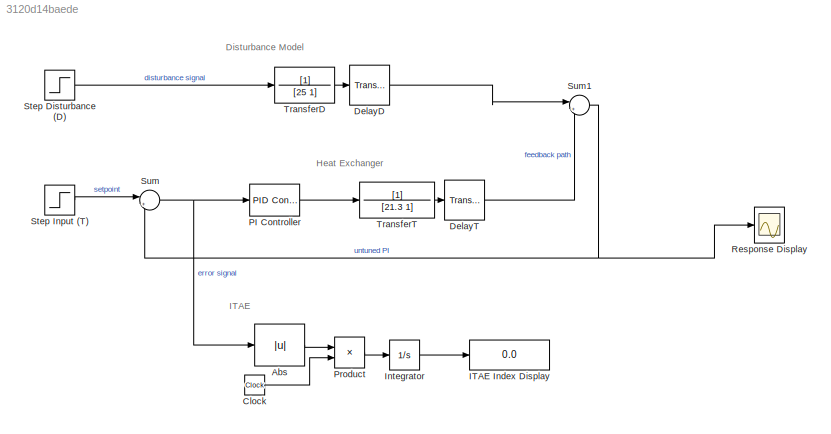
MODEL slx_3120d14baede
KIND model
CONFIG AbsTol = auto
CONFIG EnableMultiTasking = off
CONFIG FixedStep = auto
CONFIG MaxStep = auto
CONFIG MinStep = auto
CONFIG RelTol = 1e-3
CONFIG SampleTimeConstraint = Unconstrained
CONFIG SolverName = VariableStepAuto
CONFIG StartTime = 0.0
CONFIG StopTime = 500
BLOCK [Abs] Abs
  SaturateOnIntegerOverflow = off
BLOCK [Clock] Clock
BLOCK [TransportDelay] DelayD
  DelayTime = 35
BLOCK [TransportDelay] DelayT
  DelayTime = 14.7
BLOCK [Display] ITAE Index Display
  Decimation = 1
BLOCK [Integrator] Integrator
BLOCK [Reference] PI Controller  REF=slpidlib/PID Controller
  LibrarySourceBlock = simulink/Continuous/PID Controller
  SourceBlock = slpidlib/PID Controller
  SourceType = PID 1dof
BLOCK [Product] Product
BLOCK [Scope] Response Display
  ActiveDisplayYMaximum = 1.9617253861298845
  ActiveDisplayYMinimum = -0.21796948734776489
  Floating = off
  GraphicalSettings = {"Style":{"BackgroundColor":[0.12941176470588237,0.12941176470588237,0.12941176470588237],"AxesColor":[0.07058823529411765,0.07058823529411765,0.07058823529411765],"LabelsColor":[0.8509803921568627,0.8509803921568627,0.8509803921568627],"PreserveColors":false,"Visible":[true],"LineStyle":["-"],"LineWidth":[0.75],"BarWidth":[0.9],"LineColor":["auto"],"LineFaceAlpha":[1],"LineEdgeAlpha":[1],"Marker"...<+2006ch>
  MultipleDisplayCache = [{"MaxYLimMag":1.9617253861298845,"MaxYLimReal":1.9617253861298845,"MinYLimMag":0,"MinYLimReal":-0.21796948734776489,"PlotAsMagnitudePhase":false,"ShowGrid":true,"ShowLegend":true,"Title":"%<SignalLabel>","YLabel":""}]
  NumInputPorts = 1
  ScopeFrameLocation = window
  ShowLegend = on
  WasSavedAsWebScope = on
  WindowPosition = [274.000000,27.000000,929.000000,649.000000,]
BLOCK [Step] Step Disturbance (D)
  SampleTime = 0
  Time = 0
BLOCK [Step] Step Input (T)
  SampleTime = 0
  Time = 0
BLOCK [Sum] Sum
  Inputs = |+-
BLOCK [Sum] Sum1
  Inputs = |++
BLOCK [TransferFcn] TransferD
  ContinuousStateAttributes = 'heat'
  Denominator = [25 1]
BLOCK [TransferFcn] TransferT
  ContinuousStateAttributes = 'heat'
  Denominator = [21.3 1]
ANNOTATION (root): ITAE
ANNOTATION (root): Heat Exchanger
ANNOTATION (root): Disturbance Model
LINE Abs:1 -> Product:1
LINE Clock:1 -> Product:2
LINE DelayD:1 -> Sum1:1
LINE DelayT:1 -> Sum1:2
LINE Integrator:1 -> ITAE Index Display:1
LINE PI Controller:1 -> TransferT:1
LINE Product:1 -> Integrator:1
LINE Step Disturbance (D):1 -> TransferD:1
LINE Step Input (T):1 -> Sum:1
NET Sum1:1 -> Response Display:1, Sum:2
NET Sum:1 -> Abs:1, PI Controller:1
LINE TransferD:1 -> DelayD:1
LINE TransferT:1 -> DelayT:1
note: NET lines group one-source signal fan-out (src -> all destinations, sorted); 1:1 wires keep LINE
